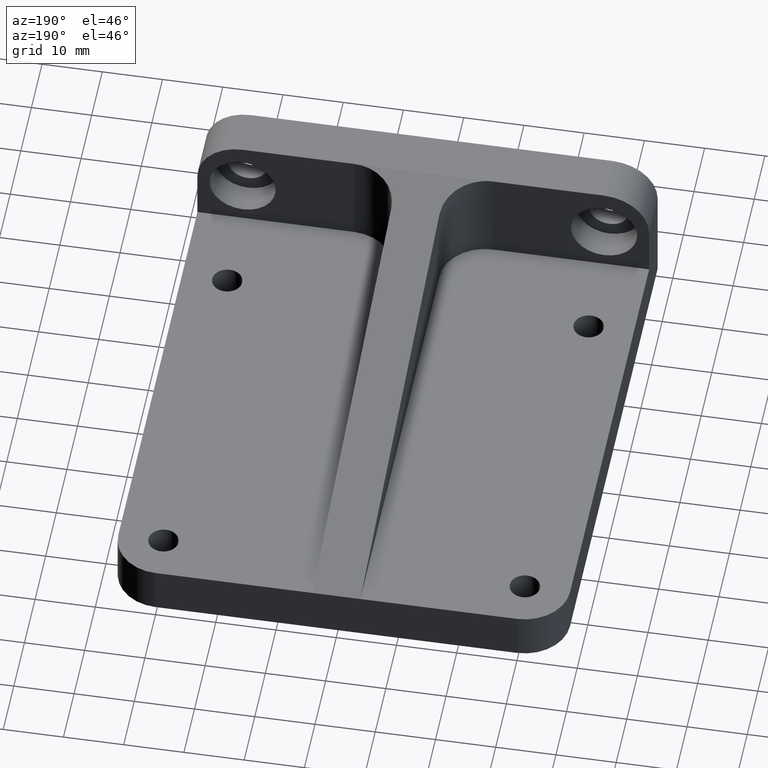
[diagram: clean part render]
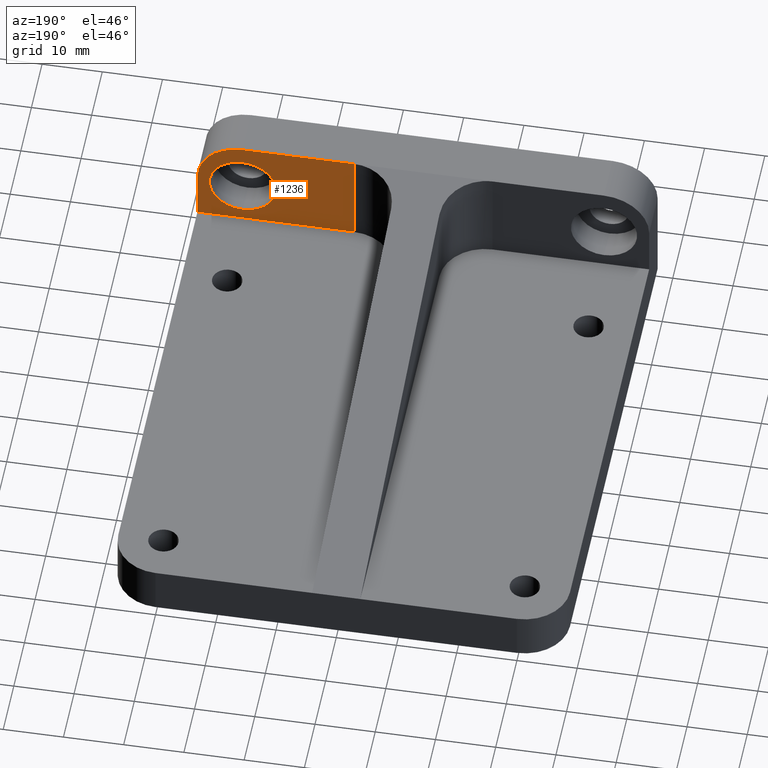
[diagram: same view with one face highlighted and labeled with its STEP entity id]
A machine part, auxiliary view. The second image highlights one B-rep face of the part: STEP entity #1236.
In plain terms, the highlighted planar face has unit normal (-0, -1, 0).
Its self-contained STEP definition (entity closure, byte-faithful):
#10 = CIRCLE ( 'NONE', #1101, 5.500000000000001776 ) ;
#19 = PLANE ( 'NONE',  #926 ) ;
#23 = CARTESIAN_POINT ( 'NONE',  ( 30.00000000000000000, 7.999999999999996447, 16.50000000000000000 ) ) ;
#68 = ORIENTED_EDGE ( 'NONE', *, *, #1045, .F. ) ;
#71 = VERTEX_POINT ( 'NONE', #782 ) ;
#85 = VERTEX_POINT ( 'NONE', #498 ) ;
#107 = LINE ( 'NONE', #657, #194 ) ;
#156 = DIRECTION ( 'NONE',  ( 0.0000000000000000000, 0.0000000000000000000, 1.000000000000000000 ) ) ;
#165 = ORIENTED_EDGE ( 'NONE', *, *, #1095, .T. ) ;
#194 = VECTOR ( 'NONE', #1150, 1000.000000000000000 ) ;
#199 = LINE ( 'NONE', #862, #853 ) ;
#202 = EDGE_CURVE ( 'NONE', #1126, #770, #760, .T. ) ;
#215 = DIRECTION ( 'NONE',  ( 1.000000000000000000, 0.0000000000000000000, 0.0000000000000000000 ) ) ;
#222 = DIRECTION ( 'NONE',  ( 5.178279032766589730E-17, 1.000000000000000000, 0.0000000000000000000 ) ) ;
#284 = EDGE_CURVE ( 'NONE', #916, #1023, #460, .T. ) ;
#307 = ORIENTED_EDGE ( 'NONE', *, *, #284, .T. ) ;
#377 = DIRECTION ( 'NONE',  ( 1.000000000000000000, -5.178279032766589730E-17, 0.0000000000000000000 ) ) ;
#390 = DIRECTION ( 'NONE',  ( -5.178279032766589730E-17, -1.000000000000000000, 0.0000000000000000000 ) ) ;
#433 = CARTESIAN_POINT ( 'NONE',  ( 30.00000000000000000, 7.999999999999996447, 24.00000000000000000 ) ) ;
#460 = LINE ( 'NONE', #857, #849 ) ;
#498 = CARTESIAN_POINT ( 'NONE',  ( 37.50000000000000000, 7.999999999999996447, 16.50000000000000000 ) ) ;
#502 = CARTESIAN_POINT ( 'NONE',  ( 30.00000000000000355, 7.999999999999996447, 20.99999999999999289 ) ) ;
#507 = CARTESIAN_POINT ( 'NONE',  ( 37.50000000000000000, 7.999999999999996447, 8.000000000000000000 ) ) ;
#509 = EDGE_CURVE ( 'NONE', #1023, #71, #548, .T. ) ;
#544 = EDGE_CURVE ( 'NONE', #916, #85, #107, .T. ) ;
#548 = LINE ( 'NONE', #1061, #924 ) ;
#571 = FACE_BOUND ( 'NONE', #1110, .T. ) ;
#581 = DIRECTION ( 'NONE',  ( -0.0000000000000000000, 1.000000000000000000, -0.0000000000000000000 ) ) ;
#639 = CARTESIAN_POINT ( 'NONE',  ( 30.00000000000000355, 7.999999999999996447, 9.999999999999991118 ) ) ;
#657 = CARTESIAN_POINT ( 'NONE',  ( 37.50000000000000000, 7.999999999999996447, -88.57906073107798761 ) ) ;
#669 = FACE_OUTER_BOUND ( 'NONE', #764, .T. ) ;
#723 = AXIS2_PLACEMENT_3D ( 'NONE', #23, #222, #215 ) ;
#743 = DIRECTION ( 'NONE',  ( -0.0000000000000000000, 1.000000000000000000, -0.0000000000000000000 ) ) ;
#760 = CIRCLE ( 'NONE', #828, 5.500000000000001776 ) ;
#764 = EDGE_LOOP ( 'NONE', ( #68, #165, #1138, #307, #1173 ) ) ;
#770 = VERTEX_POINT ( 'NONE', #639 ) ;
#771 = DIRECTION ( 'NONE',  ( -1.000000000000000000, -0.0000000000000000000, -0.0000000000000000000 ) ) ;
#782 = CARTESIAN_POINT ( 'NONE',  ( 11.50000000000001066, 7.999999999999996447, 24.00000000000000000 ) ) ;
#787 = VERTEX_POINT ( 'NONE', #433 ) ;
#828 = AXIS2_PLACEMENT_3D ( 'NONE', #841, #743, #156 ) ;
#833 = CIRCLE ( 'NONE', #723, 7.500000000000000000 ) ;
#841 = CARTESIAN_POINT ( 'NONE',  ( 30.00000000000000355, 7.999999999999996447, 15.49999999999999289 ) ) ;
#846 = ORIENTED_EDGE ( 'NONE', *, *, #1079, .F. ) ;
#849 = VECTOR ( 'NONE', #1240, 1000.000000000000000 ) ;
#853 = VECTOR ( 'NONE', #771, 1000.000000000000000 ) ;
#857 = CARTESIAN_POINT ( 'NONE',  ( 37.50000000000000000, 7.999999999999996447, 8.000000000000007105 ) ) ;
#862 = CARTESIAN_POINT ( 'NONE',  ( 37.50000000000000000, 7.999999999999996447, 24.00000000000000000 ) ) ;
#869 = DIRECTION ( 'NONE',  ( 0.0000000000000000000, 0.0000000000000000000, 1.000000000000000000 ) ) ;
#880 = CARTESIAN_POINT ( 'NONE',  ( 11.50000000000001066, 7.999999999999998224, 8.000000000000007105 ) ) ;
#916 = VERTEX_POINT ( 'NONE', #507 ) ;
#924 = VECTOR ( 'NONE', #869, 1000.000000000000000 ) ;
#926 = AXIS2_PLACEMENT_3D ( 'NONE', #1147, #390, #377 ) ;
#1023 = VERTEX_POINT ( 'NONE', #880 ) ;
#1045 = EDGE_CURVE ( 'NONE', #787, #71, #199, .T. ) ;
#1061 = CARTESIAN_POINT ( 'NONE',  ( 11.50000000000001066, 7.999999999999998224, 23.99999999999999289 ) ) ;
#1074 = CARTESIAN_POINT ( 'NONE',  ( 30.00000000000000355, 7.999999999999996447, 15.49999999999999289 ) ) ;
#1079 = EDGE_CURVE ( 'NONE', #770, #1126, #10, .T. ) ;
#1089 = DIRECTION ( 'NONE',  ( 0.0000000000000000000, 0.0000000000000000000, 1.000000000000000000 ) ) ;
#1095 = EDGE_CURVE ( 'NONE', #787, #85, #833, .T. ) ;
#1101 = AXIS2_PLACEMENT_3D ( 'NONE', #1074, #581, #1089 ) ;
#1110 = EDGE_LOOP ( 'NONE', ( #1166, #846 ) ) ;
#1126 = VERTEX_POINT ( 'NONE', #502 ) ;
#1138 = ORIENTED_EDGE ( 'NONE', *, *, #544, .F. ) ;
#1147 = CARTESIAN_POINT ( 'NONE',  ( 37.50000000000000000, 7.999999999999996447, -88.57906073107798761 ) ) ;
#1150 = DIRECTION ( 'NONE',  ( -0.0000000000000000000, -0.0000000000000000000, 1.000000000000000000 ) ) ;
#1166 = ORIENTED_EDGE ( 'NONE', *, *, #202, .F. ) ;
#1173 = ORIENTED_EDGE ( 'NONE', *, *, #509, .T. ) ;
#1236 = ADVANCED_FACE ( 'NONE', ( #669, #571 ), #19, .F. ) ;
#1240 = DIRECTION ( 'NONE',  ( -1.000000000000000000, 5.178279032766589730E-17, 0.0000000000000000000 ) ) ;